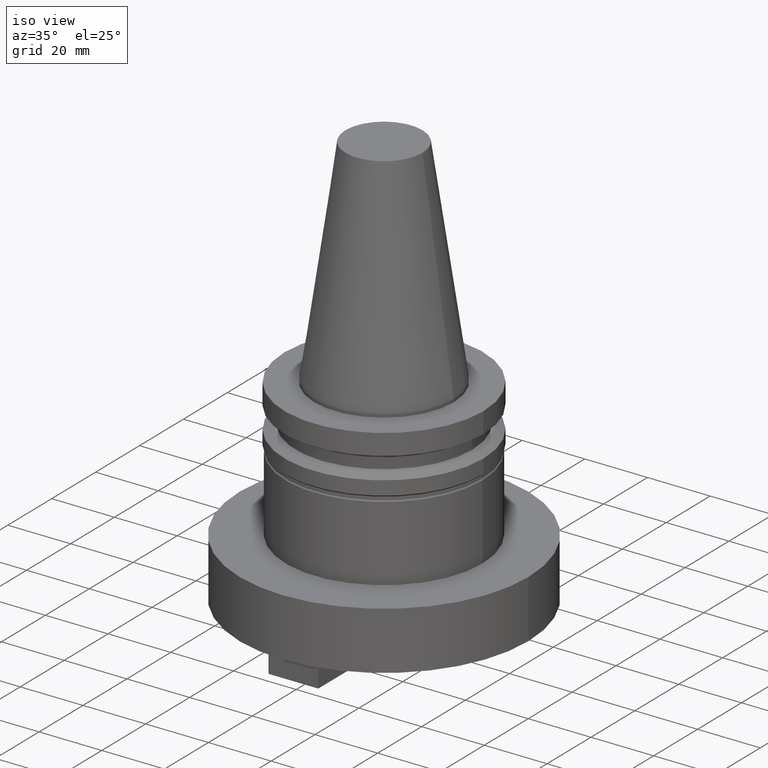
[diagram: clean part render]
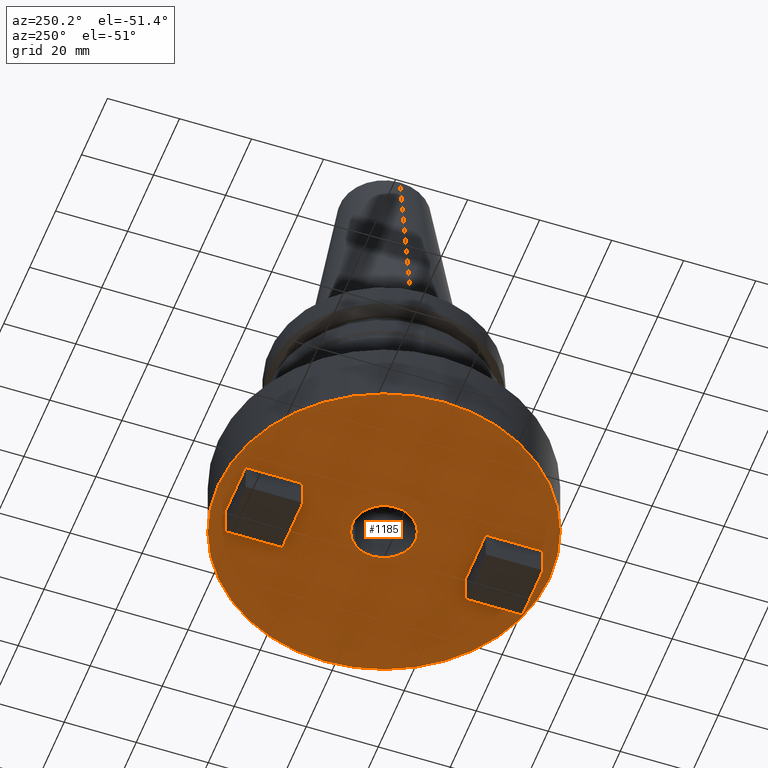
[diagram: tour spotlight — one face highlighted and labeled with its STEP entity id]
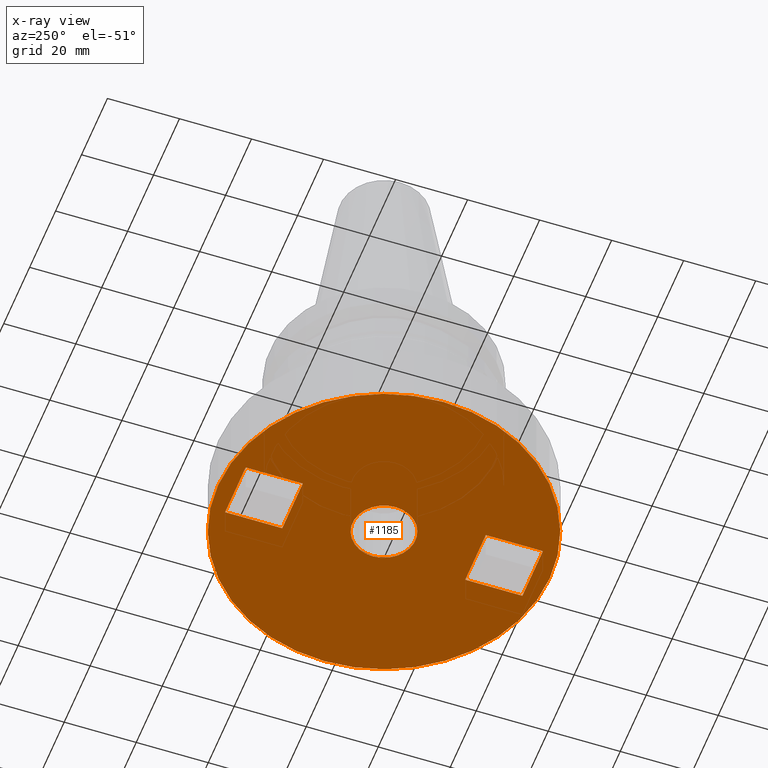
[diagram: x-ray of the same camera — body ghosted, this tour face saturated]
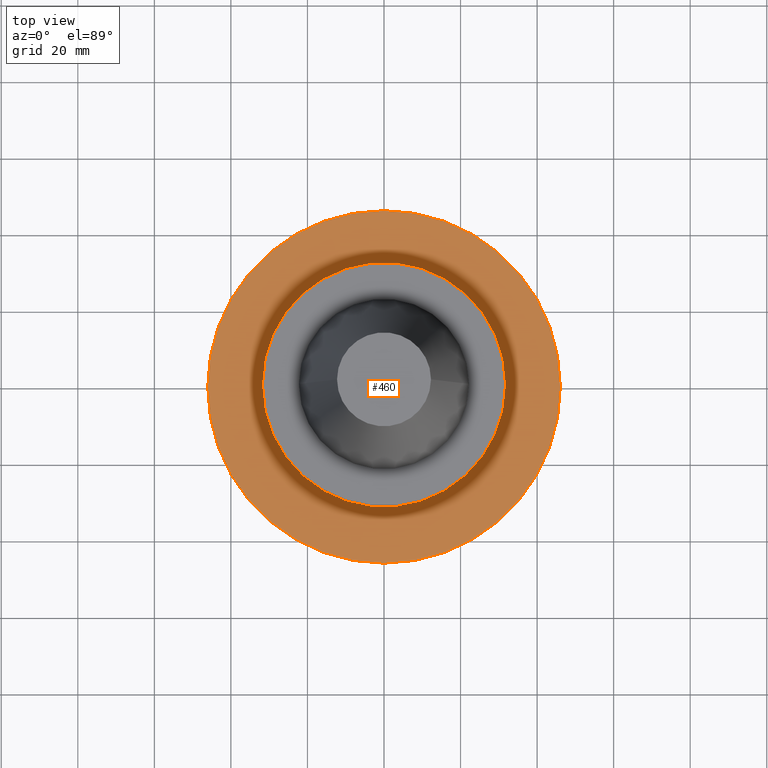
[diagram: tour spotlight — one face highlighted and labeled with its STEP entity id]
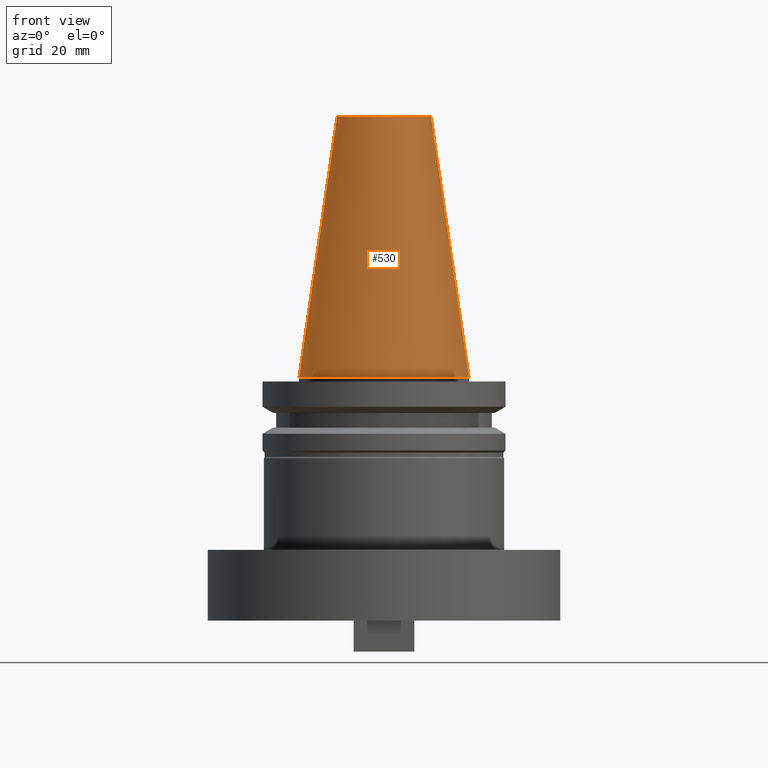
[diagram: tour spotlight — one face highlighted and labeled with its STEP entity id]
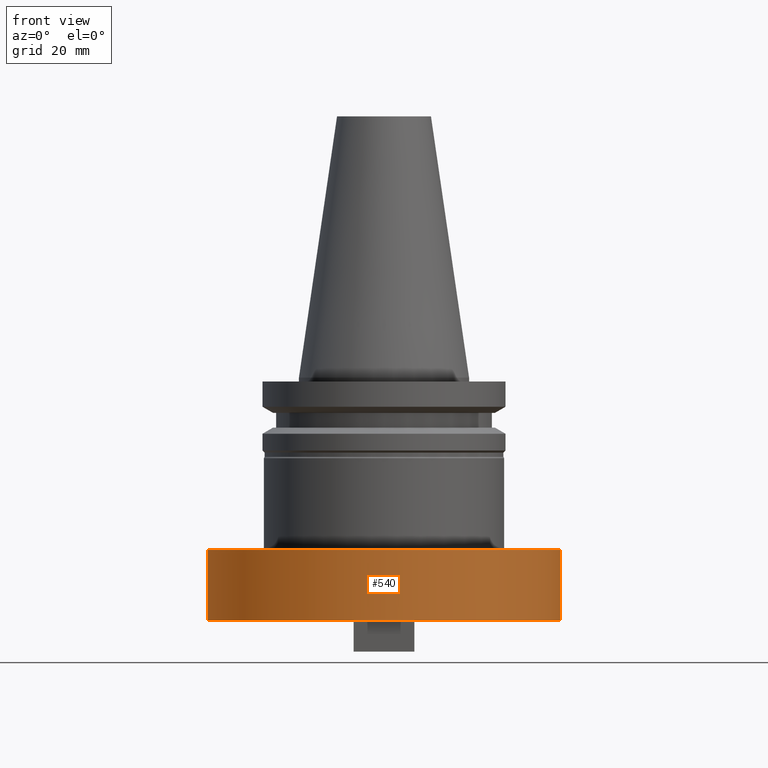
[diagram: tour spotlight — one face highlighted and labeled with its STEP entity id]
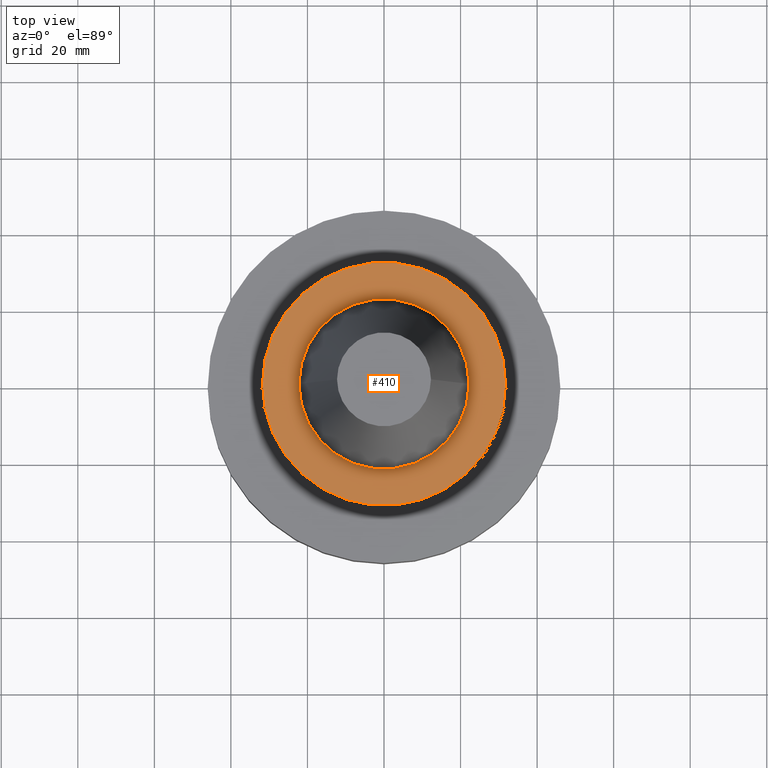
[diagram: tour spotlight — one face highlighted and labeled with its STEP entity id]
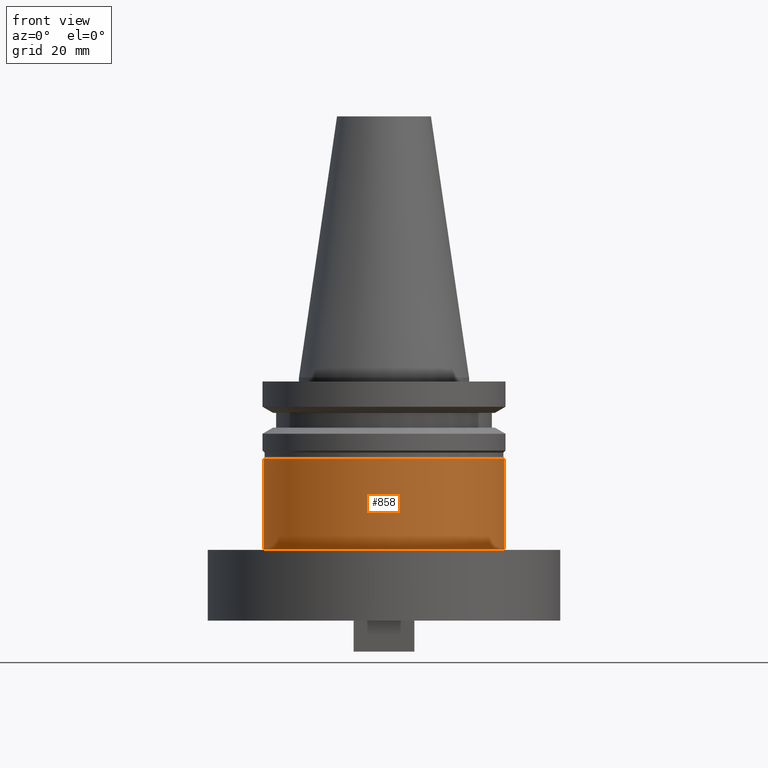
[diagram: tour spotlight — one face highlighted and labeled with its STEP entity id]
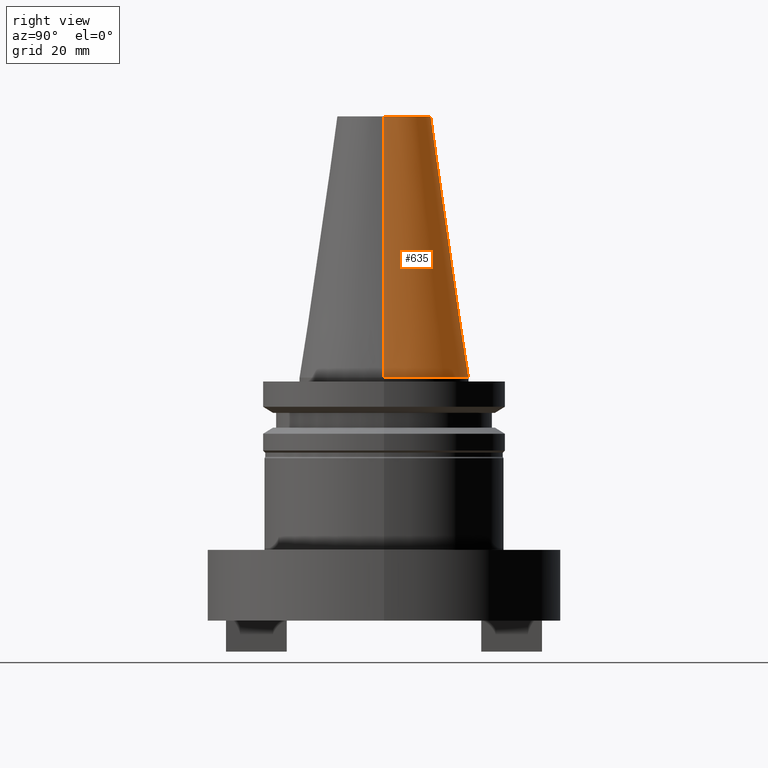
[diagram: tour spotlight — one face highlighted and labeled with its STEP entity id]
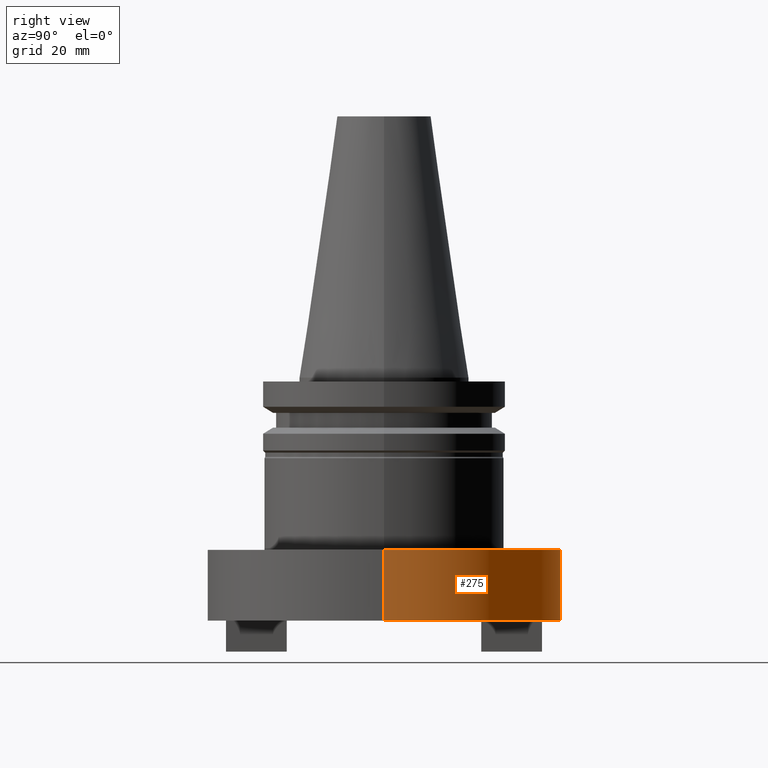
[diagram: tour spotlight — one face highlighted and labeled with its STEP entity id]
A machine part: a face-by-face anatomy tour. The part has 43 B-rep faces; the first image is the clean iso view, then the 8 largest visible faces are spotlighted one at a time (largest first), each with its STEP entity span.

Face 1 — auxiliary view, entity #1185. An x-ray twin of the same camera follows (body ghosted, this face saturated) — the face is partly hidden behind the body. In plain terms, the highlighted planar face has unit normal (0, -0, 1).
Definition (entity closure, byte-faithful):
#13 = EDGE_CURVE ( 'NONE', #877, #39, #954, .T. ) ;
#18 = CARTESIAN_POINT ( 'NONE',  ( -7.934999999999999609, 41.27500000000000568, -63.50000000000000000 ) ) ;
#19 = DIRECTION ( 'NONE',  ( -0.000000000000000000, 1.000000000000000000, -0.000000000000000000 ) ) ;
#20 = ORIENTED_EDGE ( 'NONE', *, *, #744, .F. ) ;
#36 = FACE_OUTER_BOUND ( 'NONE', #828, .T. ) ;
#37 = DIRECTION ( 'NONE',  ( 1.000000000000000000, 0.000000000000000000, 0.000000000000000000 ) ) ;
#39 = VERTEX_POINT ( 'NONE', #834 ) ;
#48 = DIRECTION ( 'NONE',  ( -0.000000000000000000, -0.000000000000000000, 1.000000000000000000 ) ) ;
#59 = DIRECTION ( 'NONE',  ( 0.000000000000000000, -1.000000000000000000, 0.000000000000000000 ) ) ;
#72 = VERTEX_POINT ( 'NONE', #642 ) ;
#111 = ORIENTED_EDGE ( 'NONE', *, *, #120, .F. ) ;
#120 = EDGE_CURVE ( 'NONE', #459, #1198, #488, .T. ) ;
#122 = DIRECTION ( 'NONE',  ( 1.000000000000000000, -0.000000000000000000, -0.000000000000000000 ) ) ;
#127 = LINE ( 'NONE', #889, #563 ) ;
#132 = CIRCLE ( 'NONE', #980, 46.04999999999999716 ) ;
#154 = LINE ( 'NONE', #717, #544 ) ;
#155 = CARTESIAN_POINT ( 'NONE',  ( 46.04999999999999716, 0.000000000000000000, -63.50000000000000000 ) ) ;
#156 = EDGE_CURVE ( 'NONE', #690, #765, #132, .T. ) ;
#157 = EDGE_LOOP ( 'NONE', ( #315, #1068, #20, #299 ) ) ;
#171 = EDGE_CURVE ( 'NONE', #191, #298, #1074, .T. ) ;
#191 = VERTEX_POINT ( 'NONE', #782 ) ;
#198 = DIRECTION ( 'NONE',  ( 0.000000000000000000, -0.000000000000000000, 1.000000000000000000 ) ) ;
#210 = CIRCLE ( 'NONE', #368, 46.04999999999999716 ) ;
#211 = LINE ( 'NONE', #771, #1096 ) ;
#215 = DIRECTION ( 'NONE',  ( 0.000000000000000000, -1.000000000000000000, 0.000000000000000000 ) ) ;
#218 = CARTESIAN_POINT ( 'NONE',  ( 0.000000000000000000, 46.04999999999999716, -63.50000000000000000 ) ) ;
#233 = EDGE_CURVE ( 'NONE', #486, #604, #127, .T. ) ;
#240 = EDGE_CURVE ( 'NONE', #765, #690, #210, .T. ) ;
#241 = CARTESIAN_POINT ( 'NONE',  ( 7.934999999999999609, 41.27500000000000568, -63.50000000000000000 ) ) ;
#250 = DIRECTION ( 'NONE',  ( -1.000000000000000000, 0.000000000000000000, 0.000000000000000000 ) ) ;
#258 = EDGE_CURVE ( 'NONE', #604, #72, #211, .T. ) ;
#267 = DIRECTION ( 'NONE',  ( -0.000000000000000000, -0.000000000000000000, 1.000000000000000000 ) ) ;
#298 = VERTEX_POINT ( 'NONE', #338 ) ;
#299 = ORIENTED_EDGE ( 'NONE', *, *, #258, .F. ) ;
#306 = ORIENTED_EDGE ( 'NONE', *, *, #171, .F. ) ;
#310 = CARTESIAN_POINT ( 'NONE',  ( 0.000000000000000000, 0.000000000000000000, -63.50000000000000000 ) ) ;
#315 = ORIENTED_EDGE ( 'NONE', *, *, #233, .F. ) ;
#323 = ORIENTED_EDGE ( 'NONE', *, *, #1139, .T. ) ;
#338 = CARTESIAN_POINT ( 'NONE',  ( 7.934999999999999609, 25.40500000000000824, -63.50000000000000000 ) ) ;
#340 = CARTESIAN_POINT ( 'NONE',  ( -46.04999999999999716, 5.639498510073560988E-15, -63.50000000000000000 ) ) ;
#347 = EDGE_LOOP ( 'NONE', ( #111, #966, #306, #1174 ) ) ;
#368 = AXIS2_PLACEMENT_3D ( 'NONE', #679, #48, #1142 ) ;
#409 = DIRECTION ( 'NONE',  ( -0.000000000000000000, -0.000000000000000000, 1.000000000000000000 ) ) ;
#459 = VERTEX_POINT ( 'NONE', #1205 ) ;
#463 = CIRCLE ( 'NONE', #852, 8.730000000000000426 ) ;
#480 = EDGE_LOOP ( 'NONE', ( #323, #1065 ) ) ;
#486 = VERTEX_POINT ( 'NONE', #662 ) ;
#488 = LINE ( 'NONE', #863, #1038 ) ;
#494 = ORIENTED_EDGE ( 'NONE', *, *, #240, .F. ) ;
#499 = VECTOR ( 'NONE', #901, 1000.000000000000000 ) ;
#509 = CARTESIAN_POINT ( 'NONE',  ( 0.000000000000000000, 0.000000000000000000, -63.50000000000000000 ) ) ;
#527 = LINE ( 'NONE', #902, #1164 ) ;
#544 = VECTOR ( 'NONE', #631, 1000.000000000000000 ) ;
#545 = AXIS2_PLACEMENT_3D ( 'NONE', #218, #198, #669 ) ;
#558 = LINE ( 'NONE', #926, #709 ) ;
#563 = VECTOR ( 'NONE', #964, 1000.000000000000000 ) ;
#601 = CARTESIAN_POINT ( 'NONE',  ( 7.934999999999999609, 41.27500000000000568, -63.50000000000000000 ) ) ;
#604 = VERTEX_POINT ( 'NONE', #673 ) ;
#612 = LINE ( 'NONE', #241, #499 ) ;
#625 = EDGE_CURVE ( 'NONE', #298, #459, #558, .T. ) ;
#631 = DIRECTION ( 'NONE',  ( -1.000000000000000000, 0.000000000000000000, 0.000000000000000000 ) ) ;
#642 = CARTESIAN_POINT ( 'NONE',  ( 7.934999999999997833, -25.40499999999999758, -63.50000000000000000 ) ) ;
#648 = ORIENTED_EDGE ( 'NONE', *, *, #156, .F. ) ;
#662 = CARTESIAN_POINT ( 'NONE',  ( -7.934999999999999609, -41.27499999999999858, -63.50000000000000000 ) ) ;
#663 = DIRECTION ( 'NONE',  ( 1.000000000000000000, 0.000000000000000000, 0.000000000000000000 ) ) ;
#669 = DIRECTION ( 'NONE',  ( 1.000000000000000000, 0.000000000000000000, 0.000000000000000000 ) ) ;
#673 = CARTESIAN_POINT ( 'NONE',  ( -7.934999999999999609, -25.40499999999999758, -63.50000000000000000 ) ) ;
#679 = CARTESIAN_POINT ( 'NONE',  ( 0.000000000000000000, 0.000000000000000000, -63.50000000000000000 ) ) ;
#690 = VERTEX_POINT ( 'NONE', #155 ) ;
#709 = VECTOR ( 'NONE', #250, 1000.000000000000000 ) ;
#717 = CARTESIAN_POINT ( 'NONE',  ( 7.934999999999997833, -41.27499999999999858, -63.50000000000000000 ) ) ;
#744 = EDGE_CURVE ( 'NONE', #72, #919, #527, .T. ) ;
#765 = VERTEX_POINT ( 'NONE', #340 ) ;
#771 = CARTESIAN_POINT ( 'NONE',  ( 7.934999999999997833, -25.40500000000000114, -63.50000000000000000 ) ) ;
#782 = CARTESIAN_POINT ( 'NONE',  ( 7.934999999999999609, 41.27500000000000568, -63.50000000000000000 ) ) ;
#816 = CARTESIAN_POINT ( 'NONE',  ( -8.730000000000000426, 1.069116655655639374E-15, -63.50000000000000000 ) ) ;
#817 = EDGE_CURVE ( 'NONE', #1198, #191, #612, .T. ) ;
#828 = EDGE_LOOP ( 'NONE', ( #648, #494 ) ) ;
#834 = CARTESIAN_POINT ( 'NONE',  ( 8.730000000000000426, 0.000000000000000000, -63.50000000000000000 ) ) ;
#852 = AXIS2_PLACEMENT_3D ( 'NONE', #310, #1141, #663 ) ;
#855 = VECTOR ( 'NONE', #215, 1000.000000000000000 ) ;
#863 = CARTESIAN_POINT ( 'NONE',  ( -7.934999999999999609, 41.27500000000000568, -63.50000000000000000 ) ) ;
#877 = VERTEX_POINT ( 'NONE', #816 ) ;
#878 = FACE_BOUND ( 'NONE', #347, .T. ) ;
#889 = CARTESIAN_POINT ( 'NONE',  ( -7.934999999999999609, -25.40500000000000114, -63.50000000000000000 ) ) ;
#894 = EDGE_CURVE ( 'NONE', #919, #486, #154, .T. ) ;
#901 = DIRECTION ( 'NONE',  ( 1.000000000000000000, -0.000000000000000000, -0.000000000000000000 ) ) ;
#902 = CARTESIAN_POINT ( 'NONE',  ( 7.934999999999997833, -25.40500000000000114, -63.50000000000000000 ) ) ;
#919 = VERTEX_POINT ( 'NONE', #1179 ) ;
#926 = CARTESIAN_POINT ( 'NONE',  ( 7.934999999999999609, 25.40500000000000824, -63.50000000000000000 ) ) ;
#954 = CIRCLE ( 'NONE', #1056, 8.730000000000000426 ) ;
#964 = DIRECTION ( 'NONE',  ( -0.000000000000000000, 1.000000000000000000, -0.000000000000000000 ) ) ;
#966 = ORIENTED_EDGE ( 'NONE', *, *, #625, .F. ) ;
#980 = AXIS2_PLACEMENT_3D ( 'NONE', #509, #409, #37 ) ;
#1038 = VECTOR ( 'NONE', #19, 1000.000000000000000 ) ;
#1048 = FACE_BOUND ( 'NONE', #157, .T. ) ;
#1049 = DIRECTION ( 'NONE',  ( 1.000000000000000000, 0.000000000000000000, 0.000000000000000000 ) ) ;
#1053 = FACE_BOUND ( 'NONE', #480, .T. ) ;
#1056 = AXIS2_PLACEMENT_3D ( 'NONE', #1125, #267, #1049 ) ;
#1065 = ORIENTED_EDGE ( 'NONE', *, *, #13, .T. ) ;
#1066 = PLANE ( 'NONE',  #545 ) ;
#1068 = ORIENTED_EDGE ( 'NONE', *, *, #894, .F. ) ;
#1074 = LINE ( 'NONE', #601, #855 ) ;
#1096 = VECTOR ( 'NONE', #122, 1000.000000000000000 ) ;
#1125 = CARTESIAN_POINT ( 'NONE',  ( 0.000000000000000000, 0.000000000000000000, -63.50000000000000000 ) ) ;
#1139 = EDGE_CURVE ( 'NONE', #39, #877, #463, .T. ) ;
#1141 = DIRECTION ( 'NONE',  ( -0.000000000000000000, -0.000000000000000000, 1.000000000000000000 ) ) ;
#1142 = DIRECTION ( 'NONE',  ( 1.000000000000000000, 0.000000000000000000, 0.000000000000000000 ) ) ;
#1164 = VECTOR ( 'NONE', #59, 1000.000000000000000 ) ;
#1174 = ORIENTED_EDGE ( 'NONE', *, *, #817, .F. ) ;
#1179 = CARTESIAN_POINT ( 'NONE',  ( 7.934999999999997833, -41.27499999999999147, -63.50000000000000000 ) ) ;
#1185 = ADVANCED_FACE ( 'NONE', ( #878, #36, #1053, #1048 ), #1066, .F. ) ;
#1198 = VERTEX_POINT ( 'NONE', #18 ) ;
#1205 = CARTESIAN_POINT ( 'NONE',  ( -7.934999999999999609, 25.40500000000000824, -63.50000000000000000 ) ) ;

Face 2 — top view, entity #460. In plain terms, the highlighted planar face has unit normal (0, 0, -1).
Definition (entity closure, byte-faithful):
#4 = CARTESIAN_POINT ( 'NONE',  ( 0.000000000000000000, 0.000000000000000000, -45.00000000000000000 ) ) ;
#53 = DIRECTION ( 'NONE',  ( 1.000000000000000000, 0.000000000000000000, 0.000000000000000000 ) ) ;
#77 = EDGE_CURVE ( 'NONE', #305, #217, #326, .T. ) ;
#121 = CARTESIAN_POINT ( 'NONE',  ( 0.000000000000000000, 0.000000000000000000, -45.00000000000000000 ) ) ;
#167 = DIRECTION ( 'NONE',  ( 1.000000000000000000, 0.000000000000000000, 0.000000000000000000 ) ) ;
#178 = ORIENTED_EDGE ( 'NONE', *, *, #591, .T. ) ;
#188 = CARTESIAN_POINT ( 'NONE',  ( 46.04999999999999716, 0.000000000000000000, -45.00000000000000000 ) ) ;
#217 = VERTEX_POINT ( 'NONE', #686 ) ;
#254 = DIRECTION ( 'NONE',  ( -1.000000000000000000, 0.000000000000000000, 0.000000000000000000 ) ) ;
#257 = CARTESIAN_POINT ( 'NONE',  ( 0.000000000000000000, 0.000000000000000000, -45.00000000000000000 ) ) ;
#262 = CARTESIAN_POINT ( 'NONE',  ( 0.000000000000000000, 0.000000000000000000, -45.00000000000000000 ) ) ;
#265 = DIRECTION ( 'NONE',  ( 0.000000000000000000, 0.000000000000000000, -1.000000000000000000 ) ) ;
#290 = AXIS2_PLACEMENT_3D ( 'NONE', #121, #492, #53 ) ;
#300 = EDGE_CURVE ( 'NONE', #217, #305, #429, .T. ) ;
#305 = VERTEX_POINT ( 'NONE', #358 ) ;
#314 = AXIS2_PLACEMENT_3D ( 'NONE', #1040, #265, #567 ) ;
#326 = CIRCLE ( 'NONE', #485, 31.39999999999999858 ) ;
#358 = CARTESIAN_POINT ( 'NONE',  ( 31.39999999999999858, 0.000000000000000000, -45.00000000000000000 ) ) ;
#375 = EDGE_LOOP ( 'NONE', ( #657, #1089 ) ) ;
#429 = CIRCLE ( 'NONE', #581, 31.39999999999999858 ) ;
#453 = EDGE_LOOP ( 'NONE', ( #656, #178 ) ) ;
#460 = ADVANCED_FACE ( 'NONE', ( #1195, #1112 ), #838, .F. ) ;
#485 = AXIS2_PLACEMENT_3D ( 'NONE', #4, #557, #841 ) ;
#492 = DIRECTION ( 'NONE',  ( -0.000000000000000000, -0.000000000000000000, 1.000000000000000000 ) ) ;
#535 = CARTESIAN_POINT ( 'NONE',  ( -46.04999999999999716, 5.639498510073560988E-15, -45.00000000000000000 ) ) ;
#546 = DIRECTION ( 'NONE',  ( 0.000000000000000000, 0.000000000000000000, -1.000000000000000000 ) ) ;
#557 = DIRECTION ( 'NONE',  ( 0.000000000000000000, 0.000000000000000000, -1.000000000000000000 ) ) ;
#567 = DIRECTION ( 'NONE',  ( -1.000000000000000000, 0.000000000000000000, -0.000000000000000000 ) ) ;
#581 = AXIS2_PLACEMENT_3D ( 'NONE', #262, #546, #254 ) ;
#591 = EDGE_CURVE ( 'NONE', #628, #1061, #659, .T. ) ;
#594 = CIRCLE ( 'NONE', #953, 46.04999999999999716 ) ;
#628 = VERTEX_POINT ( 'NONE', #535 ) ;
#629 = EDGE_CURVE ( 'NONE', #1061, #628, #594, .T. ) ;
#656 = ORIENTED_EDGE ( 'NONE', *, *, #629, .T. ) ;
#657 = ORIENTED_EDGE ( 'NONE', *, *, #77, .T. ) ;
#659 = CIRCLE ( 'NONE', #290, 46.04999999999999716 ) ;
#686 = CARTESIAN_POINT ( 'NONE',  ( -31.39999999999999858, 3.845390949322688543E-15, -45.00000000000000000 ) ) ;
#838 = PLANE ( 'NONE',  #314 ) ;
#841 = DIRECTION ( 'NONE',  ( -1.000000000000000000, 0.000000000000000000, 0.000000000000000000 ) ) ;
#953 = AXIS2_PLACEMENT_3D ( 'NONE', #257, #1016, #167 ) ;
#1016 = DIRECTION ( 'NONE',  ( -0.000000000000000000, -0.000000000000000000, 1.000000000000000000 ) ) ;
#1040 = CARTESIAN_POINT ( 'NONE',  ( 0.000000000000000000, 46.04999999999999716, -45.00000000000000000 ) ) ;
#1061 = VERTEX_POINT ( 'NONE', #188 ) ;
#1089 = ORIENTED_EDGE ( 'NONE', *, *, #300, .T. ) ;
#1112 = FACE_OUTER_BOUND ( 'NONE', #453, .T. ) ;
#1195 = FACE_BOUND ( 'NONE', #375, .T. ) ;

Face 3 — front view, entity #530. In plain terms, the highlighted conical surface has half-angle 8.297 deg.
Definition (entity closure, byte-faithful):
#10 = DIRECTION ( 'NONE',  ( 1.000000000000000000, 0.000000000000000000, 0.000000000000000000 ) ) ;
#28 = CARTESIAN_POINT ( 'NONE',  ( 22.22500000000000142, 2.721777511104992849E-15, 0.000000000000000000 ) ) ;
#56 = CARTESIAN_POINT ( 'NONE',  ( -22.22500000000000142, 0.000000000000000000, 0.000000000000000000 ) ) ;
#73 = VECTOR ( 'NONE', #1177, 999.9999999999998863 ) ;
#76 = AXIS2_PLACEMENT_3D ( 'NONE', #365, #1134, #10 ) ;
#119 = CIRCLE ( 'NONE', #489, 12.27178102086201150 ) ;
#153 = DIRECTION ( 'NONE',  ( 0.1443082272672999711, 1.767266086135276757E-17, -0.9895327864921755756 ) ) ;
#164 = CARTESIAN_POINT ( 'NONE',  ( 22.22500000000000142, 2.721777511104992849E-15, 0.000000000000000000 ) ) ;
#168 = VERTEX_POINT ( 'NONE', #777 ) ;
#223 = ORIENTED_EDGE ( 'NONE', *, *, #522, .T. ) ;
#229 = VERTEX_POINT ( 'NONE', #311 ) ;
#247 = VECTOR ( 'NONE', #153, 999.9999999999998863 ) ;
#270 = FACE_OUTER_BOUND ( 'NONE', #590, .T. ) ;
#295 = CARTESIAN_POINT ( 'NONE',  ( 0.000000000000000000, 0.000000000000000000, 68.25000000000000000 ) ) ;
#311 = CARTESIAN_POINT ( 'NONE',  ( -22.22500000000000142, 0.000000000000000000, 0.000000000000000000 ) ) ;
#337 = EDGE_CURVE ( 'NONE', #814, #229, #1013, .T. ) ;
#359 = CARTESIAN_POINT ( 'NONE',  ( -12.27178102086201150, 0.000000000000000000, 68.25000000000000000 ) ) ;
#365 = CARTESIAN_POINT ( 'NONE',  ( 0.000000000000000000, 0.000000000000000000, 0.000000000000000000 ) ) ;
#383 = DIRECTION ( 'NONE',  ( 0.000000000000000000, 0.000000000000000000, -1.000000000000000000 ) ) ;
#390 = EDGE_CURVE ( 'NONE', #168, #607, #1091, .T. ) ;
#392 = CARTESIAN_POINT ( 'NONE',  ( 0.000000000000000000, 0.000000000000000000, 0.000000000000000000 ) ) ;
#427 = EDGE_CURVE ( 'NONE', #814, #168, #119, .T. ) ;
#457 = DIRECTION ( 'NONE',  ( -1.000000000000000000, 0.000000000000000000, 0.000000000000000000 ) ) ;
#465 = DIRECTION ( 'NONE',  ( -0.000000000000000000, -0.000000000000000000, 1.000000000000000000 ) ) ;
#489 = AXIS2_PLACEMENT_3D ( 'NONE', #295, #465, #946 ) ;
#522 = EDGE_CURVE ( 'NONE', #229, #607, #799, .T. ) ;
#530 = ADVANCED_FACE ( 'NONE', ( #270 ), #1009, .T. ) ;
#590 = EDGE_LOOP ( 'NONE', ( #869, #903, #1153, #223 ) ) ;
#607 = VERTEX_POINT ( 'NONE', #28 ) ;
#777 = CARTESIAN_POINT ( 'NONE',  ( 12.27178102086201150, 2.112318622904291439E-15, 68.25000000000000000 ) ) ;
#778 = AXIS2_PLACEMENT_3D ( 'NONE', #392, #383, #457 ) ;
#799 = CIRCLE ( 'NONE', #76, 22.22500000000000142 ) ;
#814 = VERTEX_POINT ( 'NONE', #359 ) ;
#869 = ORIENTED_EDGE ( 'NONE', *, *, #390, .F. ) ;
#903 = ORIENTED_EDGE ( 'NONE', *, *, #427, .F. ) ;
#946 = DIRECTION ( 'NONE',  ( 1.000000000000000000, 0.000000000000000000, 0.000000000000000000 ) ) ;
#1009 = CONICAL_SURFACE ( 'NONE', #778, 22.22500000000000142, 0.1448138465474119174 ) ;
#1013 = LINE ( 'NONE', #56, #73 ) ;
#1091 = LINE ( 'NONE', #164, #247 ) ;
#1134 = DIRECTION ( 'NONE',  ( -0.000000000000000000, -0.000000000000000000, 1.000000000000000000 ) ) ;
#1153 = ORIENTED_EDGE ( 'NONE', *, *, #337, .T. ) ;
#1177 = DIRECTION ( 'NONE',  ( -0.1443082272672999711, 0.000000000000000000, -0.9895327864921755756 ) ) ;

Face 4 — front view, entity #540. In plain terms, the highlighted cylindrical surface (partial cylindrical patch) has radius 46.05 mm, axis along (-0, -0, 1).
Definition (entity closure, byte-faithful):
#48 = DIRECTION ( 'NONE',  ( -0.000000000000000000, -0.000000000000000000, 1.000000000000000000 ) ) ;
#53 = DIRECTION ( 'NONE',  ( 1.000000000000000000, 0.000000000000000000, 0.000000000000000000 ) ) ;
#121 = CARTESIAN_POINT ( 'NONE',  ( 0.000000000000000000, 0.000000000000000000, -45.00000000000000000 ) ) ;
#155 = CARTESIAN_POINT ( 'NONE',  ( 46.04999999999999716, 0.000000000000000000, -63.50000000000000000 ) ) ;
#188 = CARTESIAN_POINT ( 'NONE',  ( 46.04999999999999716, 0.000000000000000000, -45.00000000000000000 ) ) ;
#209 = CARTESIAN_POINT ( 'NONE',  ( 0.000000000000000000, 0.000000000000000000, 0.000000000000000000 ) ) ;
#210 = CIRCLE ( 'NONE', #368, 46.04999999999999716 ) ;
#221 = ORIENTED_EDGE ( 'NONE', *, *, #591, .F. ) ;
#234 = LINE ( 'NONE', #998, #1126 ) ;
#240 = EDGE_CURVE ( 'NONE', #765, #690, #210, .T. ) ;
#290 = AXIS2_PLACEMENT_3D ( 'NONE', #121, #492, #53 ) ;
#308 = VECTOR ( 'NONE', #1098, 1000.000000000000000 ) ;
#340 = CARTESIAN_POINT ( 'NONE',  ( -46.04999999999999716, 5.639498510073560988E-15, -63.50000000000000000 ) ) ;
#355 = EDGE_CURVE ( 'NONE', #690, #1061, #1187, .T. ) ;
#368 = AXIS2_PLACEMENT_3D ( 'NONE', #679, #48, #1142 ) ;
#492 = DIRECTION ( 'NONE',  ( -0.000000000000000000, -0.000000000000000000, 1.000000000000000000 ) ) ;
#535 = CARTESIAN_POINT ( 'NONE',  ( -46.04999999999999716, 5.639498510073560988E-15, -45.00000000000000000 ) ) ;
#540 = ADVANCED_FACE ( 'NONE', ( #897 ), #1180, .T. ) ;
#591 = EDGE_CURVE ( 'NONE', #628, #1061, #659, .T. ) ;
#624 = AXIS2_PLACEMENT_3D ( 'NONE', #209, #970, #762 ) ;
#628 = VERTEX_POINT ( 'NONE', #535 ) ;
#659 = CIRCLE ( 'NONE', #290, 46.04999999999999716 ) ;
#672 = ORIENTED_EDGE ( 'NONE', *, *, #355, .T. ) ;
#679 = CARTESIAN_POINT ( 'NONE',  ( 0.000000000000000000, 0.000000000000000000, -63.50000000000000000 ) ) ;
#680 = EDGE_LOOP ( 'NONE', ( #881, #784, #672, #221 ) ) ;
#690 = VERTEX_POINT ( 'NONE', #155 ) ;
#762 = DIRECTION ( 'NONE',  ( 1.000000000000000000, 0.000000000000000000, 0.000000000000000000 ) ) ;
#765 = VERTEX_POINT ( 'NONE', #340 ) ;
#784 = ORIENTED_EDGE ( 'NONE', *, *, #240, .T. ) ;
#881 = ORIENTED_EDGE ( 'NONE', *, *, #923, .F. ) ;
#897 = FACE_OUTER_BOUND ( 'NONE', #680, .T. ) ;
#920 = CARTESIAN_POINT ( 'NONE',  ( 46.04999999999999716, 0.000000000000000000, 0.000000000000000000 ) ) ;
#923 = EDGE_CURVE ( 'NONE', #765, #628, #234, .T. ) ;
#970 = DIRECTION ( 'NONE',  ( -0.000000000000000000, -0.000000000000000000, 1.000000000000000000 ) ) ;
#998 = CARTESIAN_POINT ( 'NONE',  ( -46.04999999999999716, 5.639498510073560988E-15, 0.000000000000000000 ) ) ;
#1061 = VERTEX_POINT ( 'NONE', #188 ) ;
#1098 = DIRECTION ( 'NONE',  ( -0.000000000000000000, -0.000000000000000000, 1.000000000000000000 ) ) ;
#1126 = VECTOR ( 'NONE', #1183, 1000.000000000000000 ) ;
#1142 = DIRECTION ( 'NONE',  ( 1.000000000000000000, 0.000000000000000000, 0.000000000000000000 ) ) ;
#1180 = CYLINDRICAL_SURFACE ( 'NONE', #624, 46.04999999999999716 ) ;
#1183 = DIRECTION ( 'NONE',  ( -0.000000000000000000, -0.000000000000000000, 1.000000000000000000 ) ) ;
#1187 = LINE ( 'NONE', #920, #308 ) ;

Face 5 — top view, entity #410. In plain terms, the highlighted planar face has unit normal (0, 0, -1).
Definition (entity closure, byte-faithful):
#11 = CARTESIAN_POINT ( 'NONE',  ( 0.000000000000000000, 0.000000000000000000, -1.000000000000000888 ) ) ;
#32 = CARTESIAN_POINT ( 'NONE',  ( 0.000000000000000000, 0.000000000000000000, -1.000000000000000888 ) ) ;
#54 = EDGE_CURVE ( 'NONE', #1138, #141, #1146, .T. ) ;
#62 = FACE_BOUND ( 'NONE', #666, .T. ) ;
#65 = VERTEX_POINT ( 'NONE', #655 ) ;
#78 = ORIENTED_EDGE ( 'NONE', *, *, #204, .F. ) ;
#106 = CARTESIAN_POINT ( 'NONE',  ( 0.000000000000000000, 31.75000000000000000, -0.9999999999999943379 ) ) ;
#141 = VERTEX_POINT ( 'NONE', #1079 ) ;
#149 = EDGE_CURVE ( 'NONE', #1050, #65, #689, .T. ) ;
#150 = ORIENTED_EDGE ( 'NONE', *, *, #983, .T. ) ;
#186 = DIRECTION ( 'NONE',  ( 0.000000000000000000, 0.000000000000000000, -1.000000000000000000 ) ) ;
#204 = EDGE_CURVE ( 'NONE', #141, #1138, #1199, .T. ) ;
#244 = CIRCLE ( 'NONE', #1035, 31.75000000000000000 ) ;
#271 = CARTESIAN_POINT ( 'NONE',  ( 31.75000000000000000, 0.000000000000000000, -1.000000000000000888 ) ) ;
#302 = DIRECTION ( 'NONE',  ( 1.000000000000000000, 0.000000000000000000, 0.000000000000000000 ) ) ;
#307 = AXIS2_PLACEMENT_3D ( 'NONE', #675, #1166, #331 ) ;
#331 = DIRECTION ( 'NONE',  ( 1.000000000000000000, 0.000000000000000000, 0.000000000000000000 ) ) ;
#385 = CARTESIAN_POINT ( 'NONE',  ( 0.000000000000000000, 0.000000000000000000, -1.000000000000000888 ) ) ;
#410 = ADVANCED_FACE ( 'NONE', ( #62, #443 ), #809, .F. ) ;
#443 = FACE_OUTER_BOUND ( 'NONE', #703, .T. ) ;
#458 = DIRECTION ( 'NONE',  ( -0.000000000000000000, -0.000000000000000000, 1.000000000000000000 ) ) ;
#484 = DIRECTION ( 'NONE',  ( 1.000000000000000000, 0.000000000000000000, 0.000000000000000000 ) ) ;
#502 = AXIS2_PLACEMENT_3D ( 'NONE', #32, #884, #302 ) ;
#504 = CARTESIAN_POINT ( 'NONE',  ( 22.22500000000000142, 0.000000000000000000, -1.000000000000000888 ) ) ;
#615 = AXIS2_PLACEMENT_3D ( 'NONE', #11, #1136, #484 ) ;
#637 = DIRECTION ( 'NONE',  ( 1.000000000000000000, 0.000000000000000000, 0.000000000000000000 ) ) ;
#655 = CARTESIAN_POINT ( 'NONE',  ( -31.75000000000000000, 3.888253587292846476E-15, -1.000000000000000888 ) ) ;
#666 = EDGE_LOOP ( 'NONE', ( #823, #78 ) ) ;
#675 = CARTESIAN_POINT ( 'NONE',  ( 0.000000000000000000, 0.000000000000000000, -1.000000000000000888 ) ) ;
#689 = CIRCLE ( 'NONE', #502, 31.75000000000000000 ) ;
#703 = EDGE_LOOP ( 'NONE', ( #1043, #150 ) ) ;
#809 = PLANE ( 'NONE',  #915 ) ;
#823 = ORIENTED_EDGE ( 'NONE', *, *, #54, .F. ) ;
#884 = DIRECTION ( 'NONE',  ( -0.000000000000000000, -0.000000000000000000, 1.000000000000000000 ) ) ;
#915 = AXIS2_PLACEMENT_3D ( 'NONE', #106, #186, #1117 ) ;
#983 = EDGE_CURVE ( 'NONE', #65, #1050, #244, .T. ) ;
#1035 = AXIS2_PLACEMENT_3D ( 'NONE', #385, #458, #637 ) ;
#1043 = ORIENTED_EDGE ( 'NONE', *, *, #149, .T. ) ;
#1050 = VERTEX_POINT ( 'NONE', #271 ) ;
#1079 = CARTESIAN_POINT ( 'NONE',  ( -22.22500000000000142, 2.721777511104992849E-15, -1.000000000000000888 ) ) ;
#1117 = DIRECTION ( 'NONE',  ( -1.000000000000000000, 0.000000000000000000, -0.000000000000000000 ) ) ;
#1136 = DIRECTION ( 'NONE',  ( -0.000000000000000000, -0.000000000000000000, 1.000000000000000000 ) ) ;
#1138 = VERTEX_POINT ( 'NONE', #504 ) ;
#1146 = CIRCLE ( 'NONE', #615, 22.22500000000000142 ) ;
#1166 = DIRECTION ( 'NONE',  ( -0.000000000000000000, -0.000000000000000000, 1.000000000000000000 ) ) ;
#1199 = CIRCLE ( 'NONE', #307, 22.22500000000000142 ) ;

Face 6 — front view, entity #858. In plain terms, the highlighted cylindrical surface (partial cylindrical patch) has radius 31.4 mm, axis along (-0, -0, 1).
Definition (entity closure, byte-faithful):
#4 = CARTESIAN_POINT ( 'NONE',  ( 0.000000000000000000, 0.000000000000000000, -45.00000000000000000 ) ) ;
#21 = EDGE_CURVE ( 'NONE', #573, #1082, #1071, .T. ) ;
#63 = FACE_OUTER_BOUND ( 'NONE', #893, .T. ) ;
#77 = EDGE_CURVE ( 'NONE', #305, #217, #326, .T. ) ;
#158 = CARTESIAN_POINT ( 'NONE',  ( -31.39999999999999858, 3.845390949322688543E-15, -21.05000000000000071 ) ) ;
#217 = VERTEX_POINT ( 'NONE', #686 ) ;
#272 = DIRECTION ( 'NONE',  ( -0.000000000000000000, -0.000000000000000000, 1.000000000000000000 ) ) ;
#288 = DIRECTION ( 'NONE',  ( -0.000000000000000000, -0.000000000000000000, 1.000000000000000000 ) ) ;
#305 = VERTEX_POINT ( 'NONE', #358 ) ;
#324 = VECTOR ( 'NONE', #288, 1000.000000000000000 ) ;
#326 = CIRCLE ( 'NONE', #485, 31.39999999999999858 ) ;
#358 = CARTESIAN_POINT ( 'NONE',  ( 31.39999999999999858, 0.000000000000000000, -45.00000000000000000 ) ) ;
#432 = DIRECTION ( 'NONE',  ( -0.000000000000000000, -0.000000000000000000, 1.000000000000000000 ) ) ;
#462 = AXIS2_PLACEMENT_3D ( 'NONE', #572, #272, #1042 ) ;
#485 = AXIS2_PLACEMENT_3D ( 'NONE', #4, #557, #841 ) ;
#557 = DIRECTION ( 'NONE',  ( 0.000000000000000000, 0.000000000000000000, -1.000000000000000000 ) ) ;
#572 = CARTESIAN_POINT ( 'NONE',  ( 0.000000000000000000, 0.000000000000000000, -21.05000000000000071 ) ) ;
#573 = VERTEX_POINT ( 'NONE', #158 ) ;
#632 = ORIENTED_EDGE ( 'NONE', *, *, #77, .F. ) ;
#676 = ORIENTED_EDGE ( 'NONE', *, *, #21, .F. ) ;
#681 = EDGE_CURVE ( 'NONE', #305, #1082, #701, .T. ) ;
#686 = CARTESIAN_POINT ( 'NONE',  ( -31.39999999999999858, 3.845390949322688543E-15, -45.00000000000000000 ) ) ;
#694 = DIRECTION ( 'NONE',  ( 1.000000000000000000, 0.000000000000000000, 0.000000000000000000 ) ) ;
#701 = LINE ( 'NONE', #1116, #1090 ) ;
#740 = LINE ( 'NONE', #936, #324 ) ;
#796 = DIRECTION ( 'NONE',  ( -0.000000000000000000, -0.000000000000000000, 1.000000000000000000 ) ) ;
#841 = DIRECTION ( 'NONE',  ( -1.000000000000000000, 0.000000000000000000, 0.000000000000000000 ) ) ;
#850 = AXIS2_PLACEMENT_3D ( 'NONE', #1085, #796, #694 ) ;
#858 = ADVANCED_FACE ( 'NONE', ( #63 ), #1167, .T. ) ;
#862 = CARTESIAN_POINT ( 'NONE',  ( 31.39999999999999858, 0.000000000000000000, -21.05000000000000071 ) ) ;
#893 = EDGE_LOOP ( 'NONE', ( #968, #632, #1203, #676 ) ) ;
#936 = CARTESIAN_POINT ( 'NONE',  ( -31.39999999999999858, 3.845390949322688543E-15, 68.25000000000000000 ) ) ;
#948 = EDGE_CURVE ( 'NONE', #217, #573, #740, .T. ) ;
#968 = ORIENTED_EDGE ( 'NONE', *, *, #948, .F. ) ;
#1042 = DIRECTION ( 'NONE',  ( 1.000000000000000000, 0.000000000000000000, 0.000000000000000000 ) ) ;
#1071 = CIRCLE ( 'NONE', #462, 31.39999999999999858 ) ;
#1082 = VERTEX_POINT ( 'NONE', #862 ) ;
#1085 = CARTESIAN_POINT ( 'NONE',  ( 0.000000000000000000, 0.000000000000000000, 68.25000000000000000 ) ) ;
#1090 = VECTOR ( 'NONE', #432, 1000.000000000000000 ) ;
#1116 = CARTESIAN_POINT ( 'NONE',  ( 31.39999999999999858, 0.000000000000000000, 68.25000000000000000 ) ) ;
#1167 = CYLINDRICAL_SURFACE ( 'NONE', #850, 31.39999999999999858 ) ;
#1203 = ORIENTED_EDGE ( 'NONE', *, *, #681, .T. ) ;

Face 7 — right view, entity #635. In plain terms, the highlighted conical surface has half-angle 8.297 deg.
Definition (entity closure, byte-faithful):
#5 = CIRCLE ( 'NONE', #724, 22.22500000000000142 ) ;
#28 = CARTESIAN_POINT ( 'NONE',  ( 22.22500000000000142, 2.721777511104992849E-15, 0.000000000000000000 ) ) ;
#56 = CARTESIAN_POINT ( 'NONE',  ( -22.22500000000000142, 0.000000000000000000, 0.000000000000000000 ) ) ;
#73 = VECTOR ( 'NONE', #1177, 999.9999999999998863 ) ;
#81 = ORIENTED_EDGE ( 'NONE', *, *, #337, .F. ) ;
#153 = DIRECTION ( 'NONE',  ( 0.1443082272672999711, 1.767266086135276757E-17, -0.9895327864921755756 ) ) ;
#164 = CARTESIAN_POINT ( 'NONE',  ( 22.22500000000000142, 2.721777511104992849E-15, 0.000000000000000000 ) ) ;
#168 = VERTEX_POINT ( 'NONE', #777 ) ;
#192 = DIRECTION ( 'NONE',  ( 0.000000000000000000, 0.000000000000000000, -1.000000000000000000 ) ) ;
#229 = VERTEX_POINT ( 'NONE', #311 ) ;
#247 = VECTOR ( 'NONE', #153, 999.9999999999998863 ) ;
#256 = DIRECTION ( 'NONE',  ( -0.000000000000000000, -0.000000000000000000, 1.000000000000000000 ) ) ;
#269 = CARTESIAN_POINT ( 'NONE',  ( 0.000000000000000000, 0.000000000000000000, 0.000000000000000000 ) ) ;
#277 = DIRECTION ( 'NONE',  ( -1.000000000000000000, 0.000000000000000000, 0.000000000000000000 ) ) ;
#311 = CARTESIAN_POINT ( 'NONE',  ( -22.22500000000000142, 0.000000000000000000, 0.000000000000000000 ) ) ;
#325 = ORIENTED_EDGE ( 'NONE', *, *, #664, .T. ) ;
#337 = EDGE_CURVE ( 'NONE', #814, #229, #1013, .T. ) ;
#359 = CARTESIAN_POINT ( 'NONE',  ( -12.27178102086201150, 0.000000000000000000, 68.25000000000000000 ) ) ;
#390 = EDGE_CURVE ( 'NONE', #168, #607, #1091, .T. ) ;
#476 = DIRECTION ( 'NONE',  ( 1.000000000000000000, 0.000000000000000000, 0.000000000000000000 ) ) ;
#478 = EDGE_CURVE ( 'NONE', #168, #814, #1045, .T. ) ;
#482 = AXIS2_PLACEMENT_3D ( 'NONE', #1062, #192, #277 ) ;
#607 = VERTEX_POINT ( 'NONE', #28 ) ;
#613 = DIRECTION ( 'NONE',  ( 1.000000000000000000, 0.000000000000000000, 0.000000000000000000 ) ) ;
#635 = ADVANCED_FACE ( 'NONE', ( #767 ), #1197, .T. ) ;
#640 = DIRECTION ( 'NONE',  ( -0.000000000000000000, -0.000000000000000000, 1.000000000000000000 ) ) ;
#664 = EDGE_CURVE ( 'NONE', #607, #229, #5, .T. ) ;
#724 = AXIS2_PLACEMENT_3D ( 'NONE', #269, #256, #613 ) ;
#755 = ORIENTED_EDGE ( 'NONE', *, *, #478, .F. ) ;
#757 = AXIS2_PLACEMENT_3D ( 'NONE', #941, #640, #476 ) ;
#767 = FACE_OUTER_BOUND ( 'NONE', #849, .T. ) ;
#777 = CARTESIAN_POINT ( 'NONE',  ( 12.27178102086201150, 2.112318622904291439E-15, 68.25000000000000000 ) ) ;
#814 = VERTEX_POINT ( 'NONE', #359 ) ;
#849 = EDGE_LOOP ( 'NONE', ( #755, #887, #325, #81 ) ) ;
#887 = ORIENTED_EDGE ( 'NONE', *, *, #390, .T. ) ;
#941 = CARTESIAN_POINT ( 'NONE',  ( 0.000000000000000000, 0.000000000000000000, 68.25000000000000000 ) ) ;
#1013 = LINE ( 'NONE', #56, #73 ) ;
#1045 = CIRCLE ( 'NONE', #757, 12.27178102086201150 ) ;
#1062 = CARTESIAN_POINT ( 'NONE',  ( 0.000000000000000000, 0.000000000000000000, 0.000000000000000000 ) ) ;
#1091 = LINE ( 'NONE', #164, #247 ) ;
#1177 = DIRECTION ( 'NONE',  ( -0.1443082272672999711, 0.000000000000000000, -0.9895327864921755756 ) ) ;
#1197 = CONICAL_SURFACE ( 'NONE', #482, 22.22500000000000142, 0.1448138465474119174 ) ;

Face 8 — right view, entity #275. In plain terms, the highlighted cylindrical surface (partial cylindrical patch) has radius 46.05 mm, axis along (-0, -0, 1).
Definition (entity closure, byte-faithful):
#37 = DIRECTION ( 'NONE',  ( 1.000000000000000000, 0.000000000000000000, 0.000000000000000000 ) ) ;
#113 = EDGE_LOOP ( 'NONE', ( #870, #474, #195, #643 ) ) ;
#132 = CIRCLE ( 'NONE', #980, 46.04999999999999716 ) ;
#155 = CARTESIAN_POINT ( 'NONE',  ( 46.04999999999999716, 0.000000000000000000, -63.50000000000000000 ) ) ;
#156 = EDGE_CURVE ( 'NONE', #690, #765, #132, .T. ) ;
#167 = DIRECTION ( 'NONE',  ( 1.000000000000000000, 0.000000000000000000, 0.000000000000000000 ) ) ;
#172 = DIRECTION ( 'NONE',  ( 1.000000000000000000, 0.000000000000000000, 0.000000000000000000 ) ) ;
#176 = CARTESIAN_POINT ( 'NONE',  ( 0.000000000000000000, 0.000000000000000000, 0.000000000000000000 ) ) ;
#188 = CARTESIAN_POINT ( 'NONE',  ( 46.04999999999999716, 0.000000000000000000, -45.00000000000000000 ) ) ;
#195 = ORIENTED_EDGE ( 'NONE', *, *, #629, .F. ) ;
#234 = LINE ( 'NONE', #998, #1126 ) ;
#257 = CARTESIAN_POINT ( 'NONE',  ( 0.000000000000000000, 0.000000000000000000, -45.00000000000000000 ) ) ;
#275 = ADVANCED_FACE ( 'NONE', ( #430 ), #1182, .T. ) ;
#308 = VECTOR ( 'NONE', #1098, 1000.000000000000000 ) ;
#330 = AXIS2_PLACEMENT_3D ( 'NONE', #176, #437, #172 ) ;
#340 = CARTESIAN_POINT ( 'NONE',  ( -46.04999999999999716, 5.639498510073560988E-15, -63.50000000000000000 ) ) ;
#355 = EDGE_CURVE ( 'NONE', #690, #1061, #1187, .T. ) ;
#409 = DIRECTION ( 'NONE',  ( -0.000000000000000000, -0.000000000000000000, 1.000000000000000000 ) ) ;
#430 = FACE_OUTER_BOUND ( 'NONE', #113, .T. ) ;
#437 = DIRECTION ( 'NONE',  ( -0.000000000000000000, -0.000000000000000000, 1.000000000000000000 ) ) ;
#474 = ORIENTED_EDGE ( 'NONE', *, *, #923, .T. ) ;
#509 = CARTESIAN_POINT ( 'NONE',  ( 0.000000000000000000, 0.000000000000000000, -63.50000000000000000 ) ) ;
#535 = CARTESIAN_POINT ( 'NONE',  ( -46.04999999999999716, 5.639498510073560988E-15, -45.00000000000000000 ) ) ;
#594 = CIRCLE ( 'NONE', #953, 46.04999999999999716 ) ;
#628 = VERTEX_POINT ( 'NONE', #535 ) ;
#629 = EDGE_CURVE ( 'NONE', #1061, #628, #594, .T. ) ;
#643 = ORIENTED_EDGE ( 'NONE', *, *, #355, .F. ) ;
#690 = VERTEX_POINT ( 'NONE', #155 ) ;
#765 = VERTEX_POINT ( 'NONE', #340 ) ;
#870 = ORIENTED_EDGE ( 'NONE', *, *, #156, .T. ) ;
#920 = CARTESIAN_POINT ( 'NONE',  ( 46.04999999999999716, 0.000000000000000000, 0.000000000000000000 ) ) ;
#923 = EDGE_CURVE ( 'NONE', #765, #628, #234, .T. ) ;
#953 = AXIS2_PLACEMENT_3D ( 'NONE', #257, #1016, #167 ) ;
#980 = AXIS2_PLACEMENT_3D ( 'NONE', #509, #409, #37 ) ;
#998 = CARTESIAN_POINT ( 'NONE',  ( -46.04999999999999716, 5.639498510073560988E-15, 0.000000000000000000 ) ) ;
#1016 = DIRECTION ( 'NONE',  ( -0.000000000000000000, -0.000000000000000000, 1.000000000000000000 ) ) ;
#1061 = VERTEX_POINT ( 'NONE', #188 ) ;
#1098 = DIRECTION ( 'NONE',  ( -0.000000000000000000, -0.000000000000000000, 1.000000000000000000 ) ) ;
#1126 = VECTOR ( 'NONE', #1183, 1000.000000000000000 ) ;
#1182 = CYLINDRICAL_SURFACE ( 'NONE', #330, 46.04999999999999716 ) ;
#1183 = DIRECTION ( 'NONE',  ( -0.000000000000000000, -0.000000000000000000, 1.000000000000000000 ) ) ;
#1187 = LINE ( 'NONE', #920, #308 ) ;